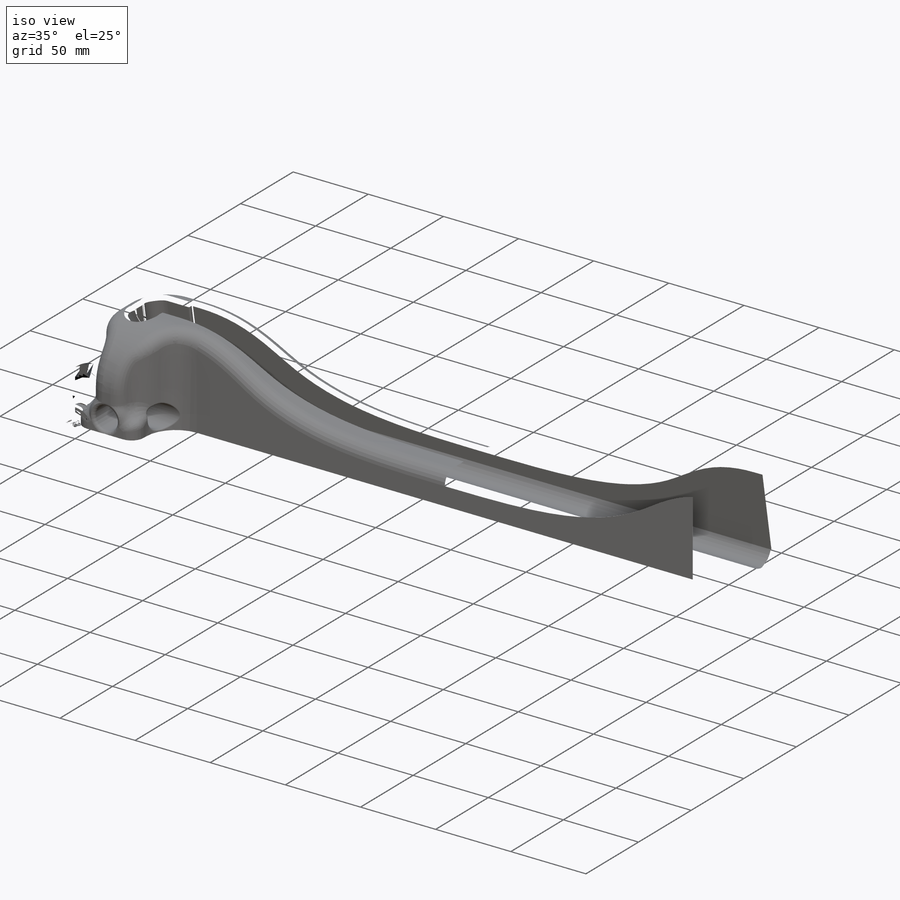
[diagram: iso view]
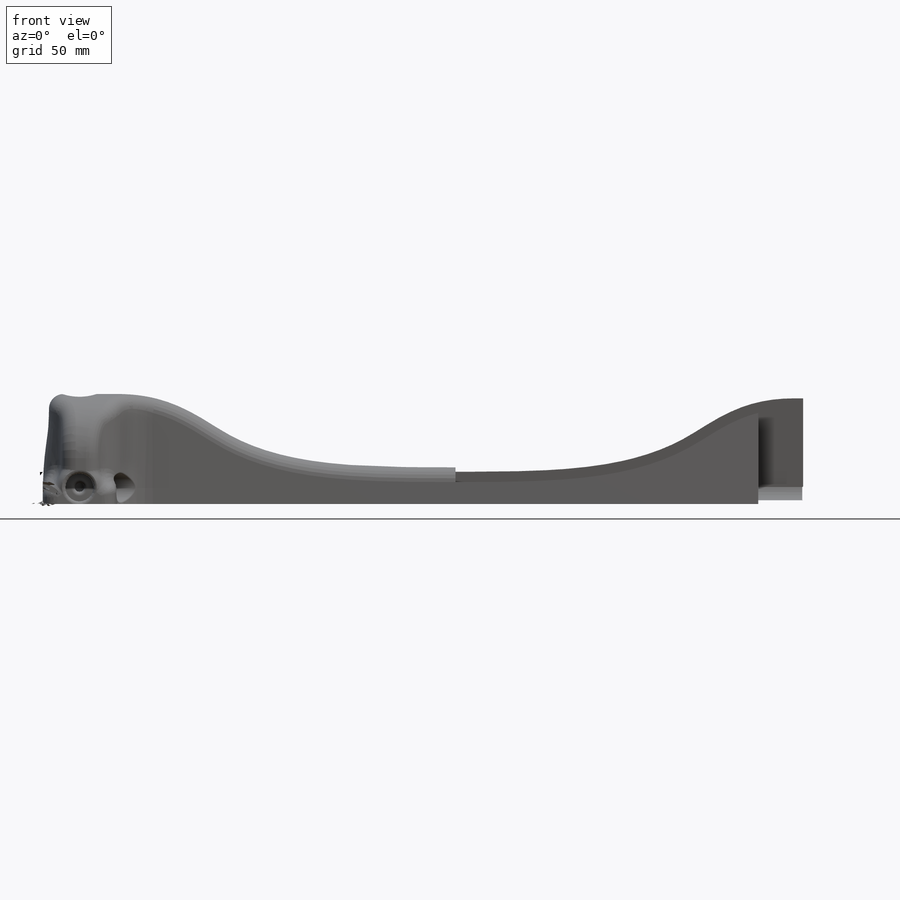
[diagram: front view]
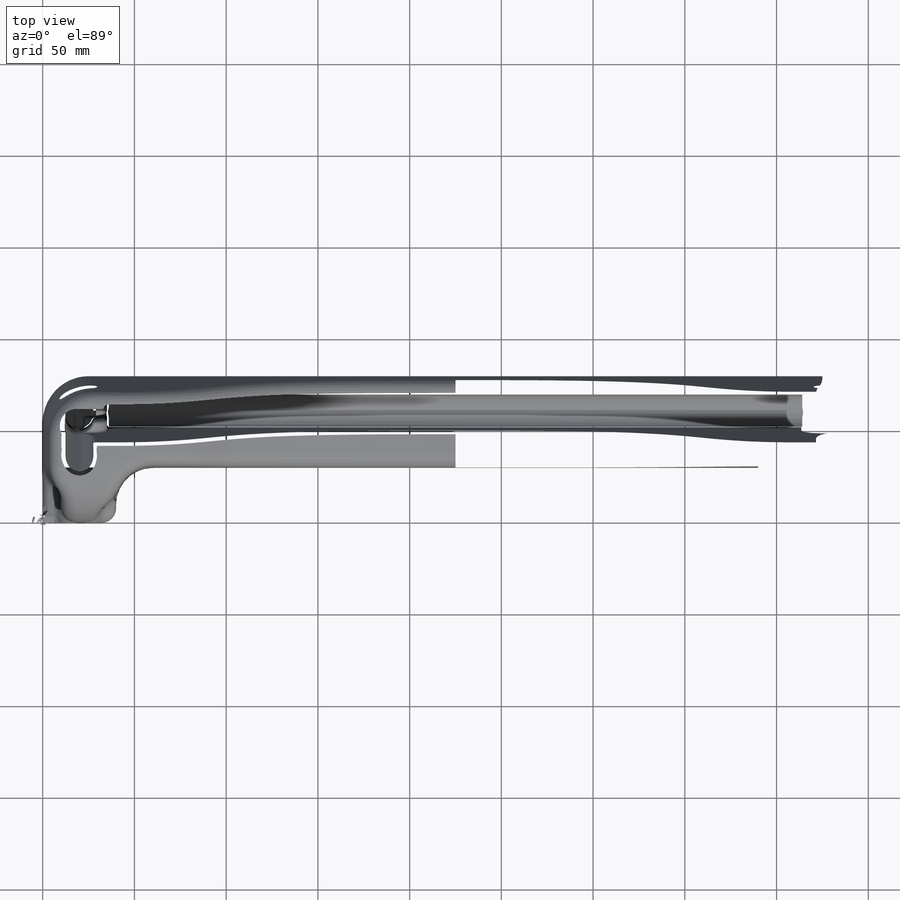
[diagram: top view]
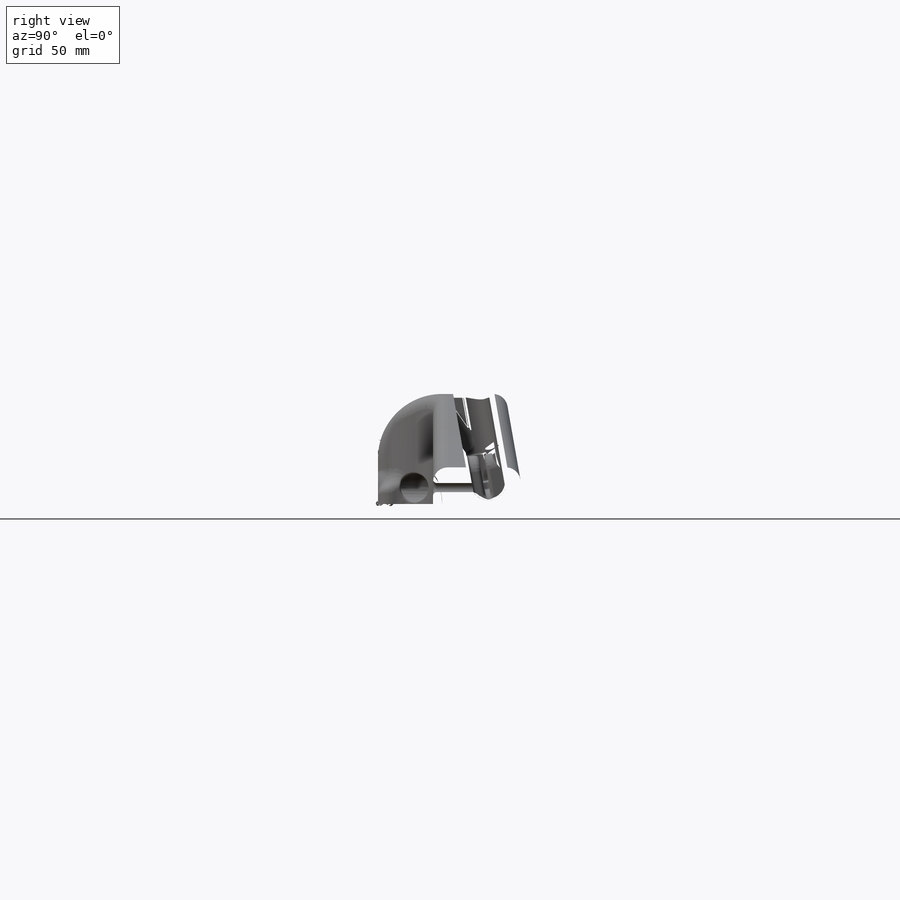
[diagram: right view]
SOLIDWORKS PART (.sldprt)
format: sldprt  version: not decoded by parser v0  size: 3,187,200 bytes
history: native  units: mm
features: fillet x37, sketch x19, cut_extrude x17, plane x5, extrude x2, material x1, mirror x1 (+11 scaffold rows collapsed)
feature tree (93):
  scaffold x11  (default folders/planes/origin — collapsed)
  material  "ABS"
  sketch  "Sketch1"  dims[D1=80.0mm D2=450.0mm]
  extrude  "Boss-Extrude1"  Depth=60mm
  sketch  "Sketch2"  dims[c1.D2=35.0mm c1.D1=~61.642746mm c2.D1=80.0deg c2.D3=40.0mm c2.D4=20.0mm]
  cut_extrude  "Cut-Extrude2"  [1 undecoded]
  sketch  "Sketch3"  dims[D1=40.0mm D2=40.0mm D3=30.0mm]
  cut_extrude  "Cut-Extrude3"  Depth=60mm
  sketch  "Sketch4"  dims[D1=20.0mm D2=40.0mm]
  cut_extrude  "Cut-Extrude4"  [1 undecoded]
  plane  "Plane1"
  plane  "Plane2"
  plane  "Plane5"  Offset=30mm
  plane  "Plane3"
  plane  "Plane4"
  sketch  "Sketch7"  dims[D1=15.2mm D2=20.0mm D3=60.0mm]
  cut_extrude  "Cut-Extrude8"  Depth=50mm
  sketch  "Sketch8"  dims[D1=15.2mm D2=430.0mm D3=60.0mm]
  cut_extrude  "Cut-Extrude9"  Depth=33mm
  sketch  "Sketch9"  dims[c1.D1=16.0mm c1.D2=~14.841758mm c1.D6=~12.852549mm c1.D7=16.2mm c2.D2=8.1mm c2.D3=16.2mm c2.D4=16.2mm c2.D5=8.1mm c2.D6=4.0mm c2.D8=4.0mm c2.D1=18.0mm c3.D2=1.5mm c3.D3=60.0mm c3.D4=~63.245553mm c4.D3=60.0mm c4.D4=20.0mm c4.D5=190.0mm c4.D6=26.0mm c4.D7=4.0mm c4.D8=50.0mm c4.D9=15.0mm]
  cut_extrude  "Cut-Extrude10"  Depth=17mm
  sketch  "Sketch27"  dims[D1=15.2mm D2=9.0mm D3=20.0mm]
  sketch  "Sketch29"
  cut_extrude  "Cut-Extrude25"  Depth=102mm
  cut_extrude  "Cut-Extrude23"  Depth=30mm
  sketch  "Sketch23"  dims[D1=10.0mm]
  cut_extrude  "Cut-Extrude20"  Depth=205mm
  sketch  "Sketch25"  dims[D1=15.2mm D2=62.85mm D3=20.0mm]
  cut_extrude  "Cut-Extrude21"  Depth=205mm
  sketch  "Sketch31"  dims[c1.D2=9.0mm c1.D4=9.0mm c1.D1=5.0mm c1.D3=5.0mm c2.D1=5.0mm c2.D5=16.0mm c2.D6=15.2mm c2.D7=~44.583619mm]
  cut_extrude  "Cut-Extrude26"  Depth=102mm
  sketch  "Sketch33"  dims[D1=36.0mm D2=20.0mm D3=10.0mm D4=10.0mm]
  cut_extrude  "Cut-Extrude29"  Depth=70mm
  sketch  "Sketch34"
  cut_extrude  "Cut-Extrude30"  [1 undecoded]
  fillet  "Fillet1"  Radius=20mm
  fillet  "Fillet2"  Radius=25mm
  sketch  "Sketch35"  dims[D1=~8.952687mm]
  cut_extrude  "Cut-Extrude31"  Depth=60mm
  fillet  "Fillet41"  Radius=1mm
  fillet  "Fillet3"  Radius=9mm
  sketch  "Sketch39"  dims[D1=15.2mm D2=12.5mm D3=~61.053755mm D4=7.6mm]
  cut_extrude  "Cut-Extrude36"  Depth=4.5mm
  fillet  "Fillet4"  Radius=1.5mm
  fillet  "Fillet7"  Radius=1mm
  fillet  "Fillet10"  Radius=31mm
  fillet  "Fillet11"  Radius=11mm
  fillet  "Fillet12"  Radius=21mm
  fillet  "Fillet13"  Radius=11mm
  sketch  "Sketch32"  dims[c1.D1=15.2mm c1.D2=9.0mm c1.D3=~22.603623mm c2.D2=9.0mm c2.D3=20.0mm]
  cut_extrude  "Cut-Extrude28"  Depth=57mm
  fillet  "Fillet14"  Radius=5mm
  fillet  "Fillet15"  Radius=1mm
  fillet  "Fillet16"  Radius=2mm
  fillet  "Fillet17"  Radius=8mm
  sketch  "Sketch36"  dims[D1=~1.509165mm]
  cut_extrude  "Cut-Extrude32"  Depth=23mm
  fillet  "Fillet33"  Radius=2mm
  sketch  "Sketch37"  dims[D1=3.0mm D2=3.0mm D3=5.0mm]
  extrude  "Boss-Extrude2"  Depth=5mm
  fillet  "Fillet20"  Radius=2mm
  fillet  "Fillet21"  Radius=5mm
  fillet  "Fillet22"  Radius=2mm
  fillet  "Fillet24"  Radius=11mm
  fillet  "Fillet23"  Radius=1mm
  fillet  "Fillet25"  Radius=2mm
  fillet  "Fillet26"  Radius=2mm
  fillet  "Fillet28"  Radius=1mm
  fillet  "Fillet29"  Radius=0.5mm
  fillet  "Fillet30"  Radius=1mm
  fillet  "Fillet43"  Radius=0.5mm
  fillet  "Fillet44"  Radius=2mm
  fillet  "Fillet32"  Radius=2mm
  fillet  "Fillet34"  Radius=0.5mm
  fillet  "Fillet42"  Radius=1mm
  fillet  "Fillet36"  Radius=2mm
  fillet  "Fillet45"  Radius=2mm
  fillet  "Fillet35"  Radius=2mm
  fillet  "Fillet46"  Radius=2mm
  fillet  "Fillet47"  Radius=2mm
  fillet  "Fillet38"  Radius=2mm
  fillet  "Fillet48"  Radius=0.2mm
  mirror  "Mirror2"
decode coverage: 70 of 76 modeling features carry decoded parameters
note: ~ marks probable driven/reference dimensions
note: 3 parameter values undecoded
summary: no parameter record found for 3 features
note: suppression state not decoded; provenance and decode notes live in map.json
